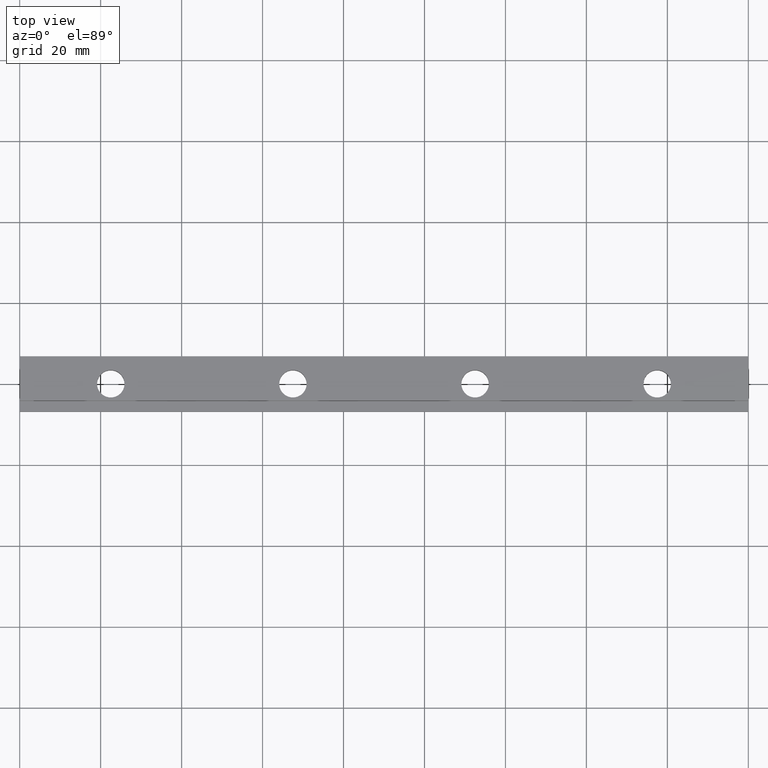
[diagram: clean part render]
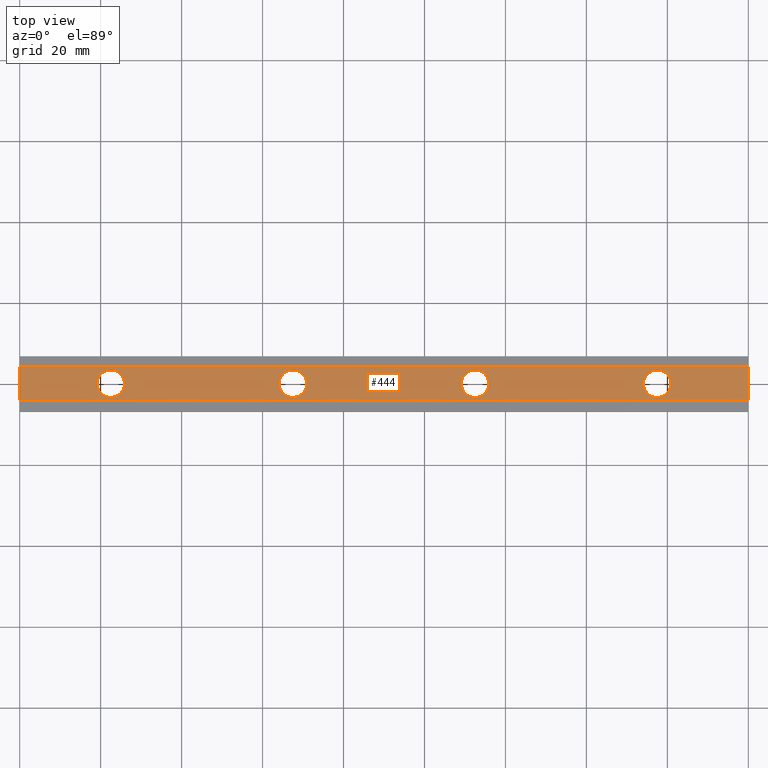
[diagram: same view with one face highlighted and labeled with its STEP entity id]
A machine part, top view. The second image highlights one B-rep face of the part: STEP entity #444.
In plain terms, the highlighted planar face has unit normal (0, 0, 1).
Its self-contained STEP definition (entity closure, byte-faithful):
#7=CARTESIAN_POINT('',(115.900000000000050,1.113940E-014,8.000000000000007));
#8=VERTEX_POINT('',#7);
#9=CARTESIAN_POINT('',(109.100000000000050,1.072302E-014,8.000000000000007));
#10=VERTEX_POINT('',#9);
#11=CARTESIAN_POINT('',(112.500000000000040,1.093121E-014,8.000000000000007));
#12=DIRECTION('',(0.0,6.123234E-017,1.0));
#13=DIRECTION('',(-1.0,-6.123234E-017,3.749399E-033));
#14=AXIS2_PLACEMENT_3D('',#11,#12,#13);
#15=CIRCLE('',#14,3.400000000000001);
#16=EDGE_CURVE('',#8,#10,#15,.T.);
#49=CARTESIAN_POINT('',(160.900000000000010,1.389486E-014,8.000000000000007));
#50=VERTEX_POINT('',#49);
#51=CARTESIAN_POINT('',(154.100000000000050,1.347848E-014,8.000000000000007));
#52=VERTEX_POINT('',#51);
#53=CARTESIAN_POINT('',(157.500000000000060,1.368667E-014,8.000000000000007));
#54=DIRECTION('',(0.0,6.123234E-017,1.0));
#55=DIRECTION('',(-1.0,-6.123234E-017,3.749399E-033));
#56=AXIS2_PLACEMENT_3D('',#53,#54,#55);
#57=CIRCLE('',#56,3.399999999999987);
#58=EDGE_CURVE('',#50,#52,#57,.T.);
#91=CARTESIAN_POINT('',(25.900000000000002,5.628490E-015,8.000000000000007));
#92=VERTEX_POINT('',#91);
#93=CARTESIAN_POINT('',(19.100000000000005,5.212110E-015,8.000000000000007));
#94=VERTEX_POINT('',#93);
#95=CARTESIAN_POINT('',(22.500000000000004,5.420300E-015,8.000000000000007));
#96=DIRECTION('',(0.0,6.123234E-017,1.0));
#97=DIRECTION('',(-1.0,-6.123234E-017,3.749399E-033));
#98=AXIS2_PLACEMENT_3D('',#95,#96,#97);
#99=CIRCLE('',#98,3.400000000000001);
#100=EDGE_CURVE('',#92,#94,#99,.T.);
#133=CARTESIAN_POINT('',(70.900000000000020,8.383945E-015,8.000000000000007));
#134=VERTEX_POINT('',#133);
#135=CARTESIAN_POINT('',(64.100000000000023,7.967565E-015,8.000000000000007));
#136=VERTEX_POINT('',#135);
#137=CARTESIAN_POINT('',(67.500000000000000,8.175755E-015,8.000000000000007));
#138=DIRECTION('',(0.0,6.123234E-017,1.0));
#139=DIRECTION('',(-1.0,-6.123234E-017,3.749399E-033));
#140=AXIS2_PLACEMENT_3D('',#137,#138,#139);
#141=CIRCLE('',#140,3.400000000000001);
#142=EDGE_CURVE('',#134,#136,#141,.T.);
#348=CARTESIAN_POINT('',(3.806828E-015,-4.149999999999994,8.0));
#349=VERTEX_POINT('',#348);
#357=CARTESIAN_POINT('',(180.0,-4.149999999999984,8.0));
#358=VERTEX_POINT('',#357);
#365=CARTESIAN_POINT('',(180.0,-4.149999999999984,8.0));
#366=DIRECTION('',(-1.0,0.0,0.0));
#367=VECTOR('',#366,180.0);
#368=LINE('',#365,#367);
#369=EDGE_CURVE('',#358,#349,#368,.T.);
#374=CARTESIAN_POINT('',(189.0,4.565000000000014,8.0));
#375=DIRECTION('',(0.0,0.0,1.0));
#376=DIRECTION('',(-1.0,0.0,0.0));
#377=AXIS2_PLACEMENT_3D('',#374,#375,#376);
#378=PLANE('',#377);
#379=CARTESIAN_POINT('',(3.298599E-015,4.150000000000003,8.0));
#380=VERTEX_POINT('',#379);
#381=CARTESIAN_POINT('',(3.806828E-015,-4.149999999999994,8.0));
#382=DIRECTION('',(0.0,1.0,0.0));
#383=VECTOR('',#382,8.299999999999997);
#384=LINE('',#381,#383);
#385=EDGE_CURVE('',#349,#380,#384,.T.);
#386=ORIENTED_EDGE('',*,*,#385,.F.);
#387=ORIENTED_EDGE('',*,*,#369,.F.);
#388=CARTESIAN_POINT('',(180.0,4.150000000000014,8.0));
#389=VERTEX_POINT('',#388);
#390=CARTESIAN_POINT('',(180.0,-4.149999999999984,8.0));
#391=DIRECTION('',(0.0,1.0,0.0));
#392=VECTOR('',#391,8.299999999999997);
#393=LINE('',#390,#392);
#394=EDGE_CURVE('',#358,#389,#393,.T.);
#395=ORIENTED_EDGE('',*,*,#394,.T.);
#396=CARTESIAN_POINT('',(180.0,4.150000000000014,8.0));
#397=DIRECTION('',(-1.0,0.0,0.0));
#398=VECTOR('',#397,180.0);
#399=LINE('',#396,#398);
#400=EDGE_CURVE('',#389,#380,#399,.T.);
#401=ORIENTED_EDGE('',*,*,#400,.T.);
#402=EDGE_LOOP('',(#386,#387,#395,#401));
#403=FACE_OUTER_BOUND('',#402,.T.);
#404=ORIENTED_EDGE('',*,*,#58,.F.);
#405=CARTESIAN_POINT('',(157.500000000000060,1.368667E-014,8.000000000000007));
#406=DIRECTION('',(0.0,6.123234E-017,1.0));
#407=DIRECTION('',(-1.0,-6.123234E-017,3.749399E-033));
#408=AXIS2_PLACEMENT_3D('',#405,#406,#407);
#409=CIRCLE('',#408,3.399999999999987);
#410=EDGE_CURVE('',#52,#50,#409,.T.);
#411=ORIENTED_EDGE('',*,*,#410,.F.);
#412=EDGE_LOOP('',(#404,#411));
#413=FACE_BOUND('',#412,.T.);
#414=ORIENTED_EDGE('',*,*,#100,.F.);
#415=CARTESIAN_POINT('',(22.500000000000004,5.420300E-015,8.000000000000007));
#416=DIRECTION('',(0.0,6.123234E-017,1.0));
#417=DIRECTION('',(-1.0,-6.123234E-017,3.749399E-033));
#418=AXIS2_PLACEMENT_3D('',#415,#416,#417);
#419=CIRCLE('',#418,3.400000000000001);
#420=EDGE_CURVE('',#94,#92,#419,.T.);
#421=ORIENTED_EDGE('',*,*,#420,.F.);
#422=EDGE_LOOP('',(#414,#421));
#423=FACE_BOUND('',#422,.T.);
#424=ORIENTED_EDGE('',*,*,#142,.F.);
#425=CARTESIAN_POINT('',(67.500000000000000,8.175755E-015,8.000000000000007));
#426=DIRECTION('',(0.0,6.123234E-017,1.0));
#427=DIRECTION('',(-1.0,-6.123234E-017,3.749399E-033));
#428=AXIS2_PLACEMENT_3D('',#425,#426,#427);
#429=CIRCLE('',#428,3.400000000000001);
#430=EDGE_CURVE('',#136,#134,#429,.T.);
#431=ORIENTED_EDGE('',*,*,#430,.F.);
#432=EDGE_LOOP('',(#424,#431));
#433=FACE_BOUND('',#432,.T.);
#434=ORIENTED_EDGE('',*,*,#16,.F.);
#435=CARTESIAN_POINT('',(112.500000000000040,1.093121E-014,8.000000000000007));
#436=DIRECTION('',(0.0,6.123234E-017,1.0));
#437=DIRECTION('',(-1.0,-6.123234E-017,3.749399E-033));
#438=AXIS2_PLACEMENT_3D('',#435,#436,#437);
#439=CIRCLE('',#438,3.400000000000001);
#440=EDGE_CURVE('',#10,#8,#439,.T.);
#441=ORIENTED_EDGE('',*,*,#440,.F.);
#442=EDGE_LOOP('',(#434,#441));
#443=FACE_BOUND('',#442,.T.);
#444=ADVANCED_FACE('',(#403,#413,#423,#433,#443),#378,.T.);